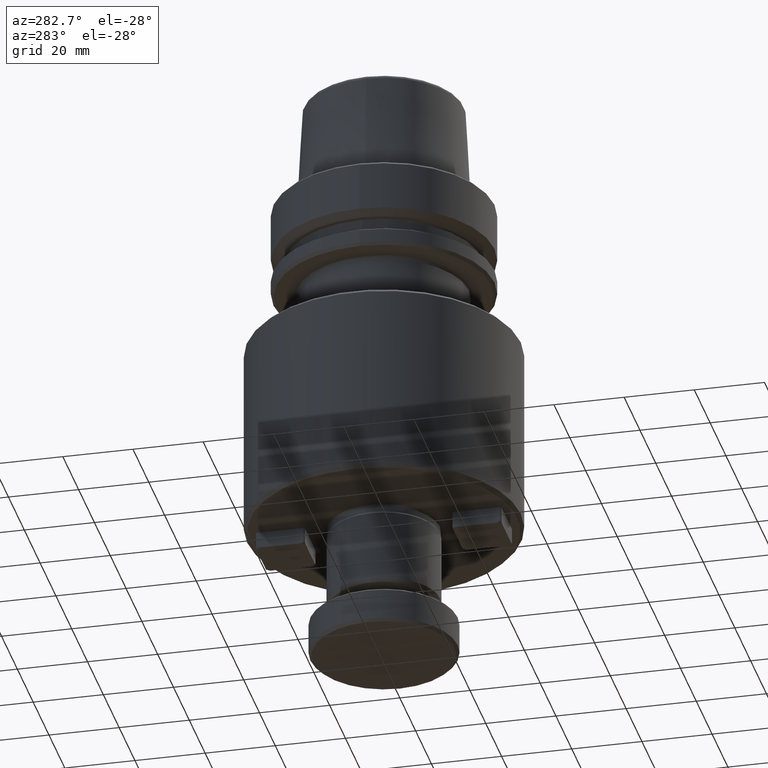
[diagram: clean part render]
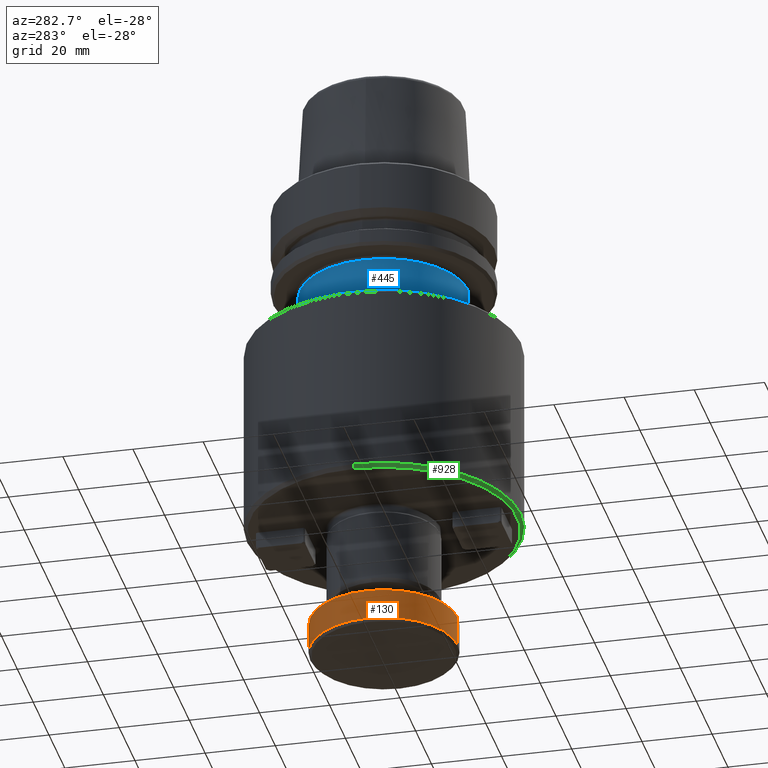
[diagram: same view with three faces highlighted in distinct colors, each labeled with its STEP entity id]
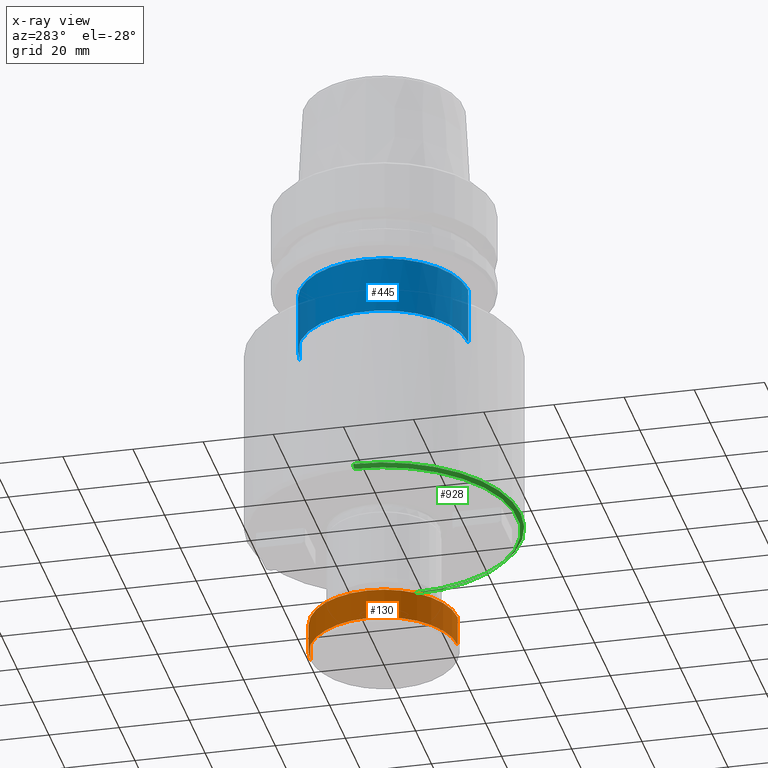
[diagram: x-ray of the same camera — body ghosted, the three highlighted faces saturated]
A machine part, auxiliary view with three faces highlighted in distinct colors.
The next image is the same camera in x-ray (body ghosted, the three faces saturated) — at least one of them is partly hidden behind the body in this view.
Their STEP definitions:

[orange] entity #130 — the highlighted cylindrical surface (partial cylindrical patch) has radius 21 mm, axis along (0, -0, 1).
#81 = DIRECTION ( 'NONE',  ( 0.0000000000000000000, 1.000000000000000000, 0.0000000000000000000 ) ) ;
#130 = ADVANCED_FACE ( 'NONE', ( #1739 ), #389, .T. ) ;
#283 = CARTESIAN_POINT ( 'NONE',  ( 0.0000000000000000000, -1.122997846055575100E-015, -138.2000000000000500 ) ) ;
#389 = CYLINDRICAL_SURFACE ( 'NONE', #1657, 21.00000000000000000 ) ;
#411 = CARTESIAN_POINT ( 'NONE',  ( 0.0000000000000000000, -21.00000000000000400, -14.76692465335438500 ) ) ;
#432 = DIRECTION ( 'NONE',  ( 0.0000000000000000000, -1.181691576284671000E-017, 1.000000000000000000 ) ) ;
#475 = EDGE_CURVE ( 'NONE', #798, #2951, #2695, .T. ) ;
#542 = DIRECTION ( 'NONE',  ( 0.0000000000000000000, -1.000000000000000000, 0.0000000000000000000 ) ) ;
#798 = VERTEX_POINT ( 'NONE', #2189 ) ;
#854 = VERTEX_POINT ( 'NONE', #1136 ) ;
#973 = DIRECTION ( 'NONE',  ( 0.0000000000000000000, -1.181691576284671000E-017, 1.000000000000000000 ) ) ;
#1082 = DIRECTION ( 'NONE',  ( -0.0000000000000000000, -1.181691576284676500E-017, 1.000000000000000000 ) ) ;
#1136 = CARTESIAN_POINT ( 'NONE',  ( -21.00000000000000400, 8.370348022326351600E-016, -138.2000000000000500 ) ) ;
#1200 = AXIS2_PLACEMENT_3D ( 'NONE', #2672, #1082, #2939 ) ;
#1214 = LINE ( 'NONE', #1825, #2463 ) ;
#1239 = EDGE_LOOP ( 'NONE', ( #2892, #1779, #3104, #1887, #1310, #3254 ) ) ;
#1310 = ORIENTED_EDGE ( 'NONE', *, *, #475, .F. ) ;
#1394 = EDGE_CURVE ( 'NONE', #1615, #798, #3274, .T. ) ;
#1550 = VERTEX_POINT ( 'NONE', #3217 ) ;
#1615 = VERTEX_POINT ( 'NONE', #2265 ) ;
#1657 = AXIS2_PLACEMENT_3D ( 'NONE', #1780, #432, #2312 ) ;
#1675 = DIRECTION ( 'NONE',  ( -0.0000000000000000000, -1.181691576284676500E-017, 1.000000000000000000 ) ) ;
#1739 = FACE_OUTER_BOUND ( 'NONE', #1239, .T. ) ;
#1770 = AXIS2_PLACEMENT_3D ( 'NONE', #2568, #973, #2829 ) ;
#1779 = ORIENTED_EDGE ( 'NONE', *, *, #1844, .T. ) ;
#1780 = CARTESIAN_POINT ( 'NONE',  ( 0.0000000000000000000, -2.581596099775997700E-015, -14.76692465335438500 ) ) ;
#1814 = CIRCLE ( 'NONE', #2708, 21.00000000000000000 ) ;
#1825 = CARTESIAN_POINT ( 'NONE',  ( 2.571758278209441700E-015, 20.99999999999999600, -14.76692465335438500 ) ) ;
#1838 = CIRCLE ( 'NONE', #1770, 21.00000000000000000 ) ;
#1844 = EDGE_CURVE ( 'NONE', #1550, #854, #1814, .T. ) ;
#1864 = DIRECTION ( 'NONE',  ( 0.0000000000000000000, -1.181691576284671000E-017, 1.000000000000000000 ) ) ;
#1887 = ORIENTED_EDGE ( 'NONE', *, *, #2121, .T. ) ;
#2121 = EDGE_CURVE ( 'NONE', #2583, #2951, #2694, .T. ) ;
#2152 = DIRECTION ( 'NONE',  ( 0.0000000000000000000, -1.181691576284671000E-017, 1.000000000000000000 ) ) ;
#2155 = EDGE_CURVE ( 'NONE', #854, #2583, #1838, .T. ) ;
#2189 = CARTESIAN_POINT ( 'NONE',  ( -21.00000000000000400, -1.734723475976807100E-015, -129.5000000000000000 ) ) ;
#2265 = CARTESIAN_POINT ( 'NONE',  ( 2.571758278209442100E-015, 21.00000000000000000, -129.5000000000000000 ) ) ;
#2312 = DIRECTION ( 'NONE',  ( 0.0000000000000000000, -1.000000000000000000, 0.0000000000000000000 ) ) ;
#2447 = AXIS2_PLACEMENT_3D ( 'NONE', #3243, #1675, #81 ) ;
#2463 = VECTOR ( 'NONE', #1864, 1000.000000000000000 ) ;
#2568 = CARTESIAN_POINT ( 'NONE',  ( 0.0000000000000000000, -1.122997846055575100E-015, -138.2000000000000500 ) ) ;
#2583 = VERTEX_POINT ( 'NONE', #3149 ) ;
#2672 = CARTESIAN_POINT ( 'NONE',  ( 0.0000000000000000000, -1.225805013192342000E-015, -129.5000000000000000 ) ) ;
#2694 = LINE ( 'NONE', #411, #3310 ) ;
#2695 = CIRCLE ( 'NONE', #2447, 20.99999999999999600 ) ;
#2708 = AXIS2_PLACEMENT_3D ( 'NONE', #283, #2152, #542 ) ;
#2829 = DIRECTION ( 'NONE',  ( 0.0000000000000000000, -1.000000000000000000, 0.0000000000000000000 ) ) ;
#2892 = ORIENTED_EDGE ( 'NONE', *, *, #3245, .F. ) ;
#2939 = DIRECTION ( 'NONE',  ( 0.0000000000000000000, 1.000000000000000000, 0.0000000000000000000 ) ) ;
#2951 = VERTEX_POINT ( 'NONE', #3255 ) ;
#3063 = DIRECTION ( 'NONE',  ( 0.0000000000000000000, -1.181691576284671000E-017, 1.000000000000000000 ) ) ;
#3104 = ORIENTED_EDGE ( 'NONE', *, *, #2155, .T. ) ;
#3149 = CARTESIAN_POINT ( 'NONE',  ( 0.0000000000000000000, -21.00000000000000000, -138.2000000000000500 ) ) ;
#3217 = CARTESIAN_POINT ( 'NONE',  ( 2.571758278209441700E-015, 21.00000000000000000, -138.2000000000000500 ) ) ;
#3243 = CARTESIAN_POINT ( 'NONE',  ( 0.0000000000000000000, -1.225805013192342000E-015, -129.5000000000000000 ) ) ;
#3245 = EDGE_CURVE ( 'NONE', #1550, #1615, #1214, .T. ) ;
#3254 = ORIENTED_EDGE ( 'NONE', *, *, #1394, .F. ) ;
#3255 = CARTESIAN_POINT ( 'NONE',  ( 0.0000000000000000000, -21.00000000000000000, -129.5000000000000000 ) ) ;
#3274 = CIRCLE ( 'NONE', #1200, 20.99999999999999600 ) ;
#3310 = VECTOR ( 'NONE', #3063, 1000.000000000000000 ) ;

[blue] entity #445 — the highlighted cylindrical surface (partial cylindrical patch) has radius 24 mm, axis along (0, 0, -1).
#165 = DIRECTION ( 'NONE',  ( 0.0000000000000000000, 1.000000000000000000, 0.0000000000000000000 ) ) ;
#241 = CIRCLE ( 'NONE', #1492, 24.00000000000000000 ) ;
#281 = VERTEX_POINT ( 'NONE', #2435 ) ;
#316 = EDGE_CURVE ( 'NONE', #3078, #1151, #2860, .T. ) ;
#405 = ORIENTED_EDGE ( 'NONE', *, *, #3213, .T. ) ;
#445 = ADVANCED_FACE ( 'NONE', ( #2003 ), #1920, .T. ) ;
#500 = AXIS2_PLACEMENT_3D ( 'NONE', #1064, #2928, #1339 ) ;
#570 = EDGE_CURVE ( 'NONE', #1777, #281, #241, .T. ) ;
#615 = EDGE_CURVE ( 'NONE', #3078, #281, #2984, .T. ) ;
#677 = CARTESIAN_POINT ( 'NONE',  ( -24.00000000000000000, 3.016348688848090700E-015, -26.80000000000000400 ) ) ;
#682 = CARTESIAN_POINT ( 'NONE',  ( 0.0000000000000000000, 24.00000000000000400, -124.0000000000000000 ) ) ;
#843 = DIRECTION ( 'NONE',  ( 0.0000000000000000000, 1.000000000000000000, 0.0000000000000000000 ) ) ;
#1010 = VECTOR ( 'NONE', #2310, 1000.000000000000000 ) ;
#1020 = CARTESIAN_POINT ( 'NONE',  ( 0.0000000000000000000, 3.998846691093428700E-017, -26.80000000000000400 ) ) ;
#1064 = CARTESIAN_POINT ( 'NONE',  ( 0.0000000000000000000, 3.998846691093428700E-017, -26.80000000000000400 ) ) ;
#1099 = VECTOR ( 'NONE', #1230, 1000.000000000000000 ) ;
#1151 = VERTEX_POINT ( 'NONE', #677 ) ;
#1230 = DIRECTION ( 'NONE',  ( 0.0000000000000000000, 4.998558363866749900E-017, -1.000000000000000000 ) ) ;
#1290 = DIRECTION ( 'NONE',  ( 0.0000000000000000000, 1.000000000000000000, 0.0000000000000000000 ) ) ;
#1339 = DIRECTION ( 'NONE',  ( 0.0000000000000000000, 1.000000000000000000, 0.0000000000000000000 ) ) ;
#1385 = CARTESIAN_POINT ( 'NONE',  ( 0.0000000000000000000, 4.898587196589415400E-015, -124.0000000000000000 ) ) ;
#1492 = AXIS2_PLACEMENT_3D ( 'NONE', #3328, #1768, #165 ) ;
#1715 = ORIENTED_EDGE ( 'NONE', *, *, #2413, .T. ) ;
#1768 = DIRECTION ( 'NONE',  ( -0.0000000000000000000, -4.998558363866749900E-017, 1.000000000000000000 ) ) ;
#1777 = VERTEX_POINT ( 'NONE', #2060 ) ;
#1800 = ORIENTED_EDGE ( 'NONE', *, *, #570, .T. ) ;
#1920 = CYLINDRICAL_SURFACE ( 'NONE', #2625, 24.00000000000000000 ) ;
#1934 = DIRECTION ( 'NONE',  ( 0.0000000000000000000, 4.998558363866749900E-017, -1.000000000000000000 ) ) ;
#2003 = FACE_OUTER_BOUND ( 'NONE', #3084, .T. ) ;
#2015 = CIRCLE ( 'NONE', #2663, 24.00000000000000000 ) ;
#2060 = CARTESIAN_POINT ( 'NONE',  ( 0.0000000000000000000, 24.00000000000000000, -43.20000000000000300 ) ) ;
#2300 = CARTESIAN_POINT ( 'NONE',  ( 2.939152317953647900E-015, -23.99999999999999600, -124.0000000000000000 ) ) ;
#2310 = DIRECTION ( 'NONE',  ( 0.0000000000000000000, 4.998558363866749900E-017, -1.000000000000000000 ) ) ;
#2413 = EDGE_CURVE ( 'NONE', #2587, #1777, #3348, .T. ) ;
#2435 = CARTESIAN_POINT ( 'NONE',  ( 2.939152317953647900E-015, -24.00000000000000000, -43.20000000000000300 ) ) ;
#2587 = VERTEX_POINT ( 'NONE', #3399 ) ;
#2625 = AXIS2_PLACEMENT_3D ( 'NONE', #1385, #1934, #843 ) ;
#2663 = AXIS2_PLACEMENT_3D ( 'NONE', #1020, #2876, #1290 ) ;
#2860 = CIRCLE ( 'NONE', #500, 24.00000000000000000 ) ;
#2876 = DIRECTION ( 'NONE',  ( 0.0000000000000000000, 4.998558363866749900E-017, -1.000000000000000000 ) ) ;
#2928 = DIRECTION ( 'NONE',  ( 0.0000000000000000000, 4.998558363866749900E-017, -1.000000000000000000 ) ) ;
#2984 = LINE ( 'NONE', #2300, #1099 ) ;
#3078 = VERTEX_POINT ( 'NONE', #3284 ) ;
#3084 = EDGE_LOOP ( 'NONE', ( #3088, #3353, #405, #1715, #1800 ) ) ;
#3088 = ORIENTED_EDGE ( 'NONE', *, *, #615, .F. ) ;
#3213 = EDGE_CURVE ( 'NONE', #1151, #2587, #2015, .T. ) ;
#3284 = CARTESIAN_POINT ( 'NONE',  ( 2.939152317953647900E-015, -24.00000000000000000, -26.80000000000000400 ) ) ;
#3328 = CARTESIAN_POINT ( 'NONE',  ( 0.0000000000000000000, 5.996540572075737800E-032, -43.20000000000000300 ) ) ;
#3348 = LINE ( 'NONE', #682, #1010 ) ;
#3353 = ORIENTED_EDGE ( 'NONE', *, *, #316, .T. ) ;
#3399 = CARTESIAN_POINT ( 'NONE',  ( 0.0000000000000000000, 24.00000000000000000, -26.80000000000000400 ) ) ;

[green] entity #928 — the highlighted conical surface has half-angle 45 deg.
#62 = CARTESIAN_POINT ( 'NONE',  ( -38.99999999999999300, 8.245569468628289700E-015, -99.00000000000000000 ) ) ;
#80 = DIRECTION ( 'NONE',  ( 0.0000000000000000000, -0.0000000000000000000, 1.000000000000000000 ) ) ;
#100 = DIRECTION ( 'NONE',  ( 0.0000000000000000000, -0.0000000000000000000, 1.000000000000000000 ) ) ;
#123 = VERTEX_POINT ( 'NONE', #179 ) ;
#166 = CARTESIAN_POINT ( 'NONE',  ( 4.776122516674677900E-015, -38.99999999999999300, -99.00000000000000000 ) ) ;
#169 = CARTESIAN_POINT ( 'NONE',  ( -37.99999999999999300, 8.184337128670923700E-015, -99.99999999999998600 ) ) ;
#179 = CARTESIAN_POINT ( 'NONE',  ( 37.99999999999999300, 3.469446951953614200E-015, -99.99999999999998600 ) ) ;
#463 = CARTESIAN_POINT ( 'NONE',  ( -38.99999999999999300, 8.245569468628289700E-015, -99.00000000000000000 ) ) ;
#478 = AXIS2_PLACEMENT_3D ( 'NONE', #2396, #793, #2652 ) ;
#744 = EDGE_CURVE ( 'NONE', #1730, #805, #1722, .T. ) ;
#793 = DIRECTION ( 'NONE',  ( -0.0000000000000000000, -4.998558363866749900E-017, 1.000000000000000000 ) ) ;
#805 = VERTEX_POINT ( 'NONE', #62 ) ;
#887 = VERTEX_POINT ( 'NONE', #2466 ) ;
#923 = DIRECTION ( 'NONE',  ( 0.7071067811865525700, 0.0000000000000000000, 0.7071067811865425800 ) ) ;
#928 = ADVANCED_FACE ( 'NONE', ( #2460 ), #957, .T. ) ;
#950 = DIRECTION ( 'NONE',  ( -0.0000000000000000000, -4.998558363866749900E-017, 1.000000000000000000 ) ) ;
#957 = CONICAL_SURFACE ( 'NONE', #1335, 38.99999999999999300, 0.7853981633974552700 ) ;
#995 = ORIENTED_EDGE ( 'NONE', *, *, #1341, .F. ) ;
#1057 = EDGE_CURVE ( 'NONE', #123, #887, #2124, .T. ) ;
#1189 = CARTESIAN_POINT ( 'NONE',  ( 38.99999999999999300, 3.469446951953614200E-015, -99.00000000000000000 ) ) ;
#1335 = AXIS2_PLACEMENT_3D ( 'NONE', #1693, #100, #1962 ) ;
#1341 = EDGE_CURVE ( 'NONE', #2127, #887, #2051, .T. ) ;
#1400 = AXIS2_PLACEMENT_3D ( 'NONE', #2548, #950, #2807 ) ;
#1458 = CIRCLE ( 'NONE', #1400, 39.00000000000000000 ) ;
#1583 = VECTOR ( 'NONE', #923, 999.9999999999998900 ) ;
#1652 = EDGE_LOOP ( 'NONE', ( #2848, #2815, #2571, #995, #2397 ) ) ;
#1674 = CARTESIAN_POINT ( 'NONE',  ( 0.0000000000000000000, 3.469446951953614200E-015, -99.99999999999998600 ) ) ;
#1693 = CARTESIAN_POINT ( 'NONE',  ( 0.0000000000000000000, 3.469446951953614200E-015, -99.00000000000000000 ) ) ;
#1722 = LINE ( 'NONE', #463, #2862 ) ;
#1730 = VERTEX_POINT ( 'NONE', #169 ) ;
#1805 = DIRECTION ( 'NONE',  ( -0.7071067811865525700, 8.659560562354994500E-017, 0.7071067811865425800 ) ) ;
#1943 = DIRECTION ( 'NONE',  ( 1.000000000000000000, 0.0000000000000000000, 0.0000000000000000000 ) ) ;
#1949 = EDGE_CURVE ( 'NONE', #1730, #123, #2353, .T. ) ;
#1962 = DIRECTION ( 'NONE',  ( 1.000000000000000000, 0.0000000000000000000, 0.0000000000000000000 ) ) ;
#2051 = CIRCLE ( 'NONE', #478, 39.00000000000000000 ) ;
#2105 = EDGE_CURVE ( 'NONE', #805, #2127, #1458, .T. ) ;
#2124 = LINE ( 'NONE', #1189, #1583 ) ;
#2127 = VERTEX_POINT ( 'NONE', #166 ) ;
#2353 = CIRCLE ( 'NONE', #3403, 37.99999999999999300 ) ;
#2396 = CARTESIAN_POINT ( 'NONE',  ( 0.0000000000000000000, 3.648947605622728300E-015, -99.00000000000000000 ) ) ;
#2397 = ORIENTED_EDGE ( 'NONE', *, *, #2105, .F. ) ;
#2460 = FACE_OUTER_BOUND ( 'NONE', #1652, .T. ) ;
#2466 = CARTESIAN_POINT ( 'NONE',  ( 38.99999999999999300, 3.469446951953614200E-015, -99.00000000000000000 ) ) ;
#2548 = CARTESIAN_POINT ( 'NONE',  ( 0.0000000000000000000, 3.648947605622728300E-015, -99.00000000000000000 ) ) ;
#2571 = ORIENTED_EDGE ( 'NONE', *, *, #1057, .T. ) ;
#2652 = DIRECTION ( 'NONE',  ( 0.0000000000000000000, 1.000000000000000000, 0.0000000000000000000 ) ) ;
#2807 = DIRECTION ( 'NONE',  ( 0.0000000000000000000, 1.000000000000000000, 0.0000000000000000000 ) ) ;
#2815 = ORIENTED_EDGE ( 'NONE', *, *, #1949, .T. ) ;
#2848 = ORIENTED_EDGE ( 'NONE', *, *, #744, .F. ) ;
#2862 = VECTOR ( 'NONE', #1805, 999.9999999999998900 ) ;
#3403 = AXIS2_PLACEMENT_3D ( 'NONE', #1674, #80, #1943 ) ;